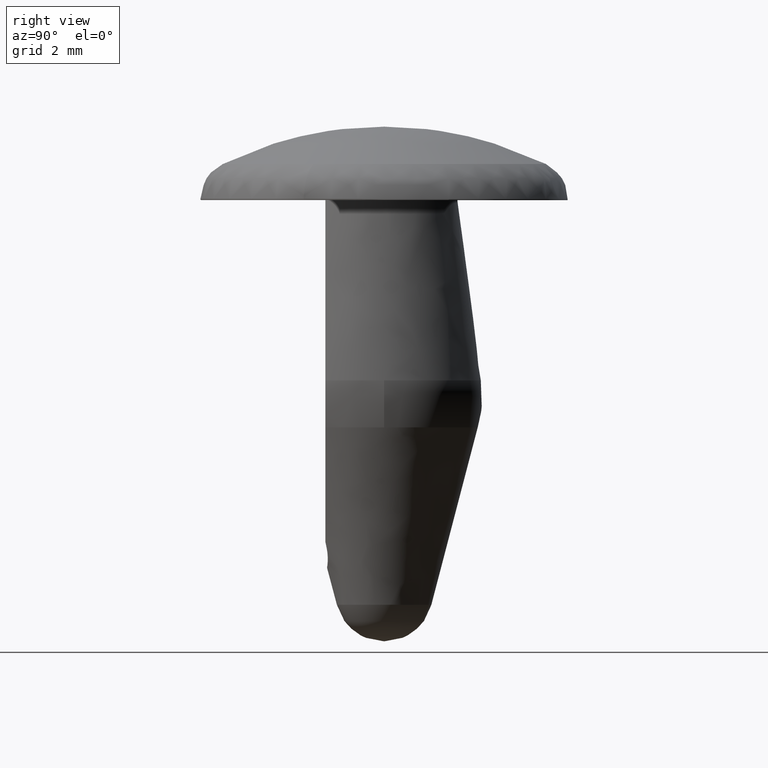
[diagram: clean part render]
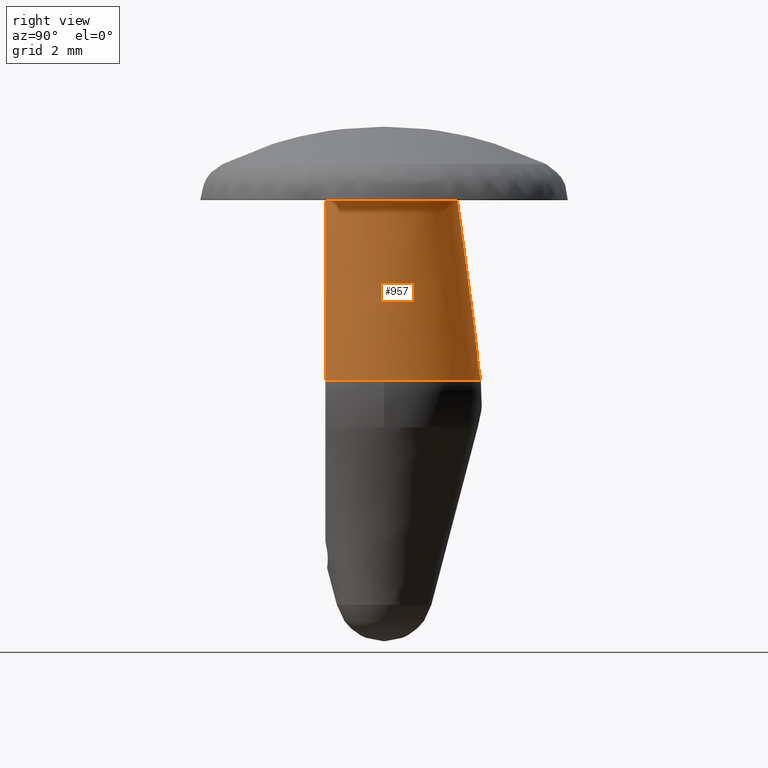
[diagram: same view with one face highlighted and labeled with its STEP entity id]
A machine part, right view. The second image highlights one B-rep face of the part: STEP entity #957.
In plain terms, the highlighted face is a freeform B-spline surface patch.
Its self-contained STEP definition (entity closure, byte-faithful):
#742=CARTESIAN_POINT('',(-1.573733587823400,-1.199999999999986,-3.677024810886955));
#743=VERTEX_POINT('',#742);
#744=CARTESIAN_POINT('',(1.979049621783978,9.594023E-011,-3.677024810964194));
#745=VERTEX_POINT('',#744);
#746=CARTESIAN_POINT('',(-1.573733587823400,-1.199999999999985,-3.677024810886955));
#747=CARTESIAN_POINT('',(-2.671100495634820,0.239135967490644,-3.677024810886955));
#748=CARTESIAN_POINT('',(-1.335550247817410,1.460459838885798,-3.677024810886955));
#749=CARTESIAN_POINT('',(4.336809E-016,2.681783710280953,-3.677024810886955));
#750=CARTESIAN_POINT('',(1.335550247817410,1.460459838885797,-3.677024810886955));
#751=CARTESIAN_POINT('',(1.979049621689369,0.871997407148744,-3.677024810886955));
#752=CARTESIAN_POINT('',(1.979049621783979,9.594023E-011,-3.677024810964194));
#760=(BOUNDED_CURVE()B_SPLINE_CURVE(2,(#746,#747,#748,#749,#750,#751,#752),.UNSPECIFIED.,.F.,.U.)B_SPLINE_CURVE_WITH_KNOTS((3,2,2,3),(0.0,0.333333333333333,0.666666666666667,0.852508629391287),.UNSPECIFIED.)CURVE()GEOMETRIC_REPRESENTATION_ITEM()RATIONAL_B_SPLINE_CURVE((1.0,0.737960192012123,1.0,0.737960192012123,1.0,0.853906023314651,0.870714394846003))REPRESENTATION_ITEM(''));
#761=EDGE_CURVE('',#743,#745,#760,.T.);
#820=CARTESIAN_POINT('',(1.573733587823400,-1.199999999999986,-3.677024810886955));
#821=VERTEX_POINT('',#820);
#822=CARTESIAN_POINT('',(1.979049621783979,9.594023E-011,-3.677024810964194));
#823=CARTESIAN_POINT('',(1.979049621838726,-0.668450452988905,-3.677024810886954));
#824=CARTESIAN_POINT('',(1.573733587823400,-1.199999999999986,-3.677024810886955));
#832=(BOUNDED_CURVE()B_SPLINE_CURVE(2,(#822,#823,#824),.UNSPECIFIED.,.F.,.U.)B_SPLINE_CURVE_WITH_KNOTS((3,3),(0.852508629391287,1.0),.UNSPECIFIED.)CURVE()GEOMETRIC_REPRESENTATION_ITEM()RATIONAL_B_SPLINE_CURVE((0.870714394846003,0.884054168697472,1.0))REPRESENTATION_ITEM(''));
#833=EDGE_CURVE('',#745,#821,#832,.T.);
#886=CARTESIAN_POINT('',(0.857189548919887,-1.216322648776343,0.091925620274105));
#887=CARTESIAN_POINT('',(1.147120936528419,-1.627725370360819,-3.771248571745152));
#888=CARTESIAN_POINT('',(2.231992210836445,-0.247446113584232,0.091925620274105));
#889=CARTESIAN_POINT('',(2.986929785185858,-0.331141015324710,-3.771248571745151));
#890=CARTESIAN_POINT('',(1.102791236696518,0.999032630582777,0.091925620274105));
#891=CARTESIAN_POINT('',(1.475793676939561,1.336940293148245,-3.771248571745152));
#892=CARTESIAN_POINT('',(-0.026409737443410,2.245511374749787,0.091925620274105));
#893=CARTESIAN_POINT('',(-0.035342431306737,3.005021601621200,-3.771248571745151));
#894=CARTESIAN_POINT('',(-1.125982436778197,0.972819747317463,0.091925620274105));
#895=CARTESIAN_POINT('',(-1.506828949348604,1.301861298965096,-3.771248571745152));
#896=CARTESIAN_POINT('',(-2.225555136112985,-0.299871880114860,0.091925620274105));
#897=CARTESIAN_POINT('',(-2.978315467390471,-0.401299003691009,-3.771248571745151));
#898=CARTESIAN_POINT('',(-0.828345756184745,-1.236146438297058,0.091925620274105));
#899=CARTESIAN_POINT('',(-1.108521167577597,-1.654254256567142,-3.771248571745152));
#907=(BOUNDED_SURFACE()B_SPLINE_SURFACE(1,2,((#886,#888,#890,#892,#894,#896,#898),(#887,#889,#891,#893,#895,#897,#899)),.UNSPECIFIED.,.F.,.F.,.U.)B_SPLINE_SURFACE_WITH_KNOTS((2,2),(3,2,2,3),(0.0,3.895821767834273),(0.0,3.588106502810695,7.176213005621390,10.764319508432081),.UNSPECIFIED.)GEOMETRIC_REPRESENTATION_ITEM()RATIONAL_B_SPLINE_SURFACE(((1.0,0.662620048215738,1.0,0.662620048215738,1.0,0.662620048215738,1.0),(1.0,0.662620048215738,1.0,0.662620048215738,1.0,0.662620048215738,1.0)))REPRESENTATION_ITEM('')SURFACE());
#908=CARTESIAN_POINT('',(0.900000000000019,-1.199999999999986,-7.347638E-017));
#909=VERTEX_POINT('',#908);
#910=CARTESIAN_POINT('',(1.573733587823400,-1.199999999999986,-3.677024810886955));
#911=CARTESIAN_POINT('',(1.489005990655326,-1.199999999999986,-3.159884669700296));
#912=CARTESIAN_POINT('',(1.401918301946416,-1.199999999999986,-2.643050464905263));
#913=CARTESIAN_POINT('',(1.219641813153173,-1.199999999999986,-1.611110511078921));
#914=CARTESIAN_POINT('',(1.124674992686648,-1.199999999999986,-1.095953280023142));
#915=CARTESIAN_POINT('',(0.982393489470487,-1.199999999999986,-0.388063193322614));
#916=CARTESIAN_POINT('',(0.942103891702534,-1.199999999999986,-0.193839023776181));
#917=CARTESIAN_POINT('',(0.900000000000019,-1.199999999999986,-7.347638E-017));
#918=B_SPLINE_CURVE_WITH_KNOTS('',3,(#910,#911,#912,#913,#914,#915,#916,#917),.UNSPECIFIED.,.F.,.U.,(4,2,2,4),(0.0,0.124999999999999,0.249999999999998,0.297349734715839),.UNSPECIFIED.);
#919=EDGE_CURVE('',#821,#909,#918,.T.);
#920=ORIENTED_EDGE('',*,*,#919,.F.);
#921=ORIENTED_EDGE('',*,*,#833,.F.);
#922=ORIENTED_EDGE('',*,*,#761,.F.);
#923=CARTESIAN_POINT('',(-0.900000000000019,-1.199999999999986,-7.347638E-017));
#924=VERTEX_POINT('',#923);
#925=CARTESIAN_POINT('',(-0.900000000000019,-1.199999999999986,-7.347638E-017));
#926=CARTESIAN_POINT('',(-0.942913641514915,-1.199999999999986,-0.197568220935154));
#927=CARTESIAN_POINT('',(-0.983957731683787,-1.199999999999986,-0.395590808369330));
#928=CARTESIAN_POINT('',(-1.126513073123144,-1.199999999999986,-1.105762847215027));
#929=CARTESIAN_POINT('',(-1.221117563328925,-1.199999999999985,-1.619266975762834));
#930=CARTESIAN_POINT('',(-1.402631399472268,-1.199999999999986,-2.647282073238782));
#931=CARTESIAN_POINT('',(-1.489346247982040,-1.199999999999986,-3.161960336343341));
#932=CARTESIAN_POINT('',(-1.573733587823400,-1.199999999999986,-3.677024810886955));
#933=B_SPLINE_CURVE_WITH_KNOTS('',3,(#925,#926,#927,#928,#929,#930,#931,#932),.UNSPECIFIED.,.F.,.U.,(4,2,2,4),(0.701567181361650,0.749999999999997,0.874999999999999,1.0),.UNSPECIFIED.);
#934=EDGE_CURVE('',#924,#743,#933,.T.);
#935=ORIENTED_EDGE('',*,*,#934,.F.);
#936=CARTESIAN_POINT('',(-0.900000000000019,-1.199999999999986,0.0));
#937=CARTESIAN_POINT('',(-1.764911064067354,-0.551316701949464,0.0));
#938=CARTESIAN_POINT('',(-1.423024947075767,0.474341649025268,0.0));
#939=CARTESIAN_POINT('',(-1.081138830084181,1.500000000000001,0.0));
#940=CARTESIAN_POINT('',(0.0,1.500000000000000,0.0));
#941=CARTESIAN_POINT('',(1.081138830084179,1.500000000000001,0.0));
#942=CARTESIAN_POINT('',(1.423024947075766,0.474341649025270,0.0));
#943=CARTESIAN_POINT('',(1.764911064067355,-0.551316701949462,0.0));
#944=CARTESIAN_POINT('',(0.900000000000020,-1.199999999999985,0.0));
#952=(BOUNDED_CURVE()B_SPLINE_CURVE(2,(#936,#937,#938,#939,#940,#941,#942,#943,#944),.UNSPECIFIED.,.F.,.U.)B_SPLINE_CURVE_WITH_KNOTS((3,2,2,2,3),(0.0,0.250000000000000,0.500000000000000,0.750000000000000,1.0),.UNSPECIFIED.)CURVE()GEOMETRIC_REPRESENTATION_ITEM()RATIONAL_B_SPLINE_CURVE((1.0,0.811242185175563,1.0,0.811242185175563,1.0,0.811242185175563,1.0,0.811242185175563,1.0))REPRESENTATION_ITEM(''));
#953=EDGE_CURVE('',#924,#909,#952,.T.);
#954=ORIENTED_EDGE('',*,*,#953,.T.);
#955=EDGE_LOOP('',(#920,#921,#922,#935,#954));
#956=FACE_OUTER_BOUND('',#955,.T.);
#957=ADVANCED_FACE('',(#956),#907,.T.);